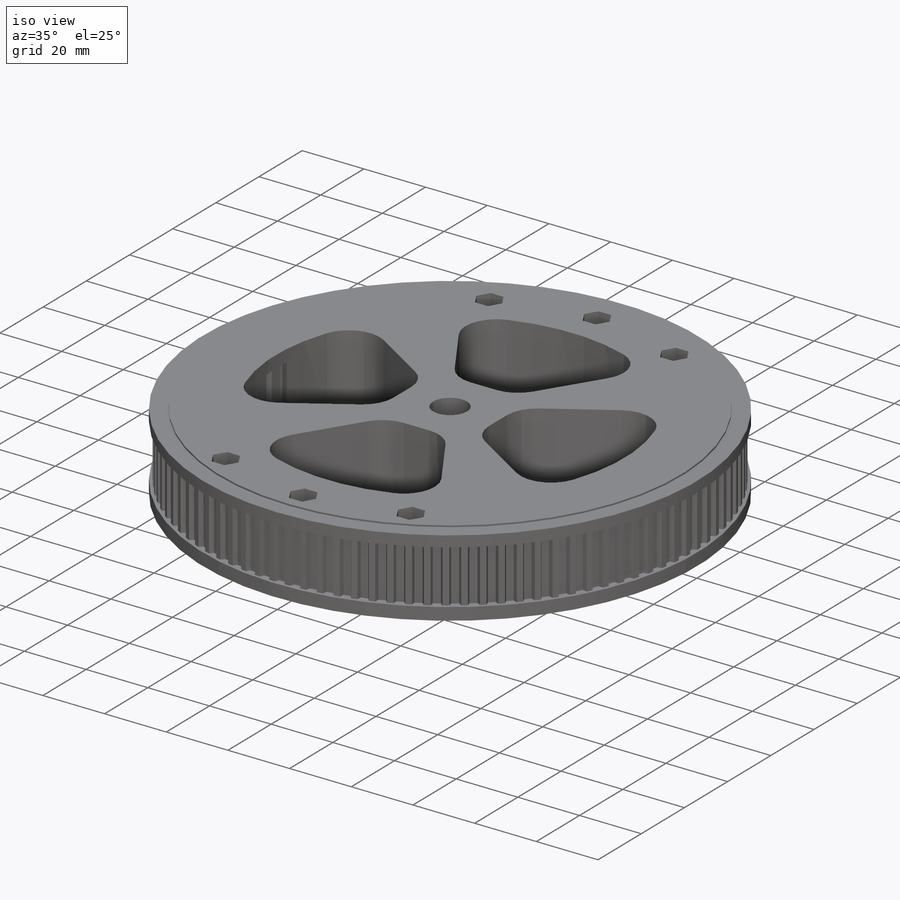
[diagram: iso view]
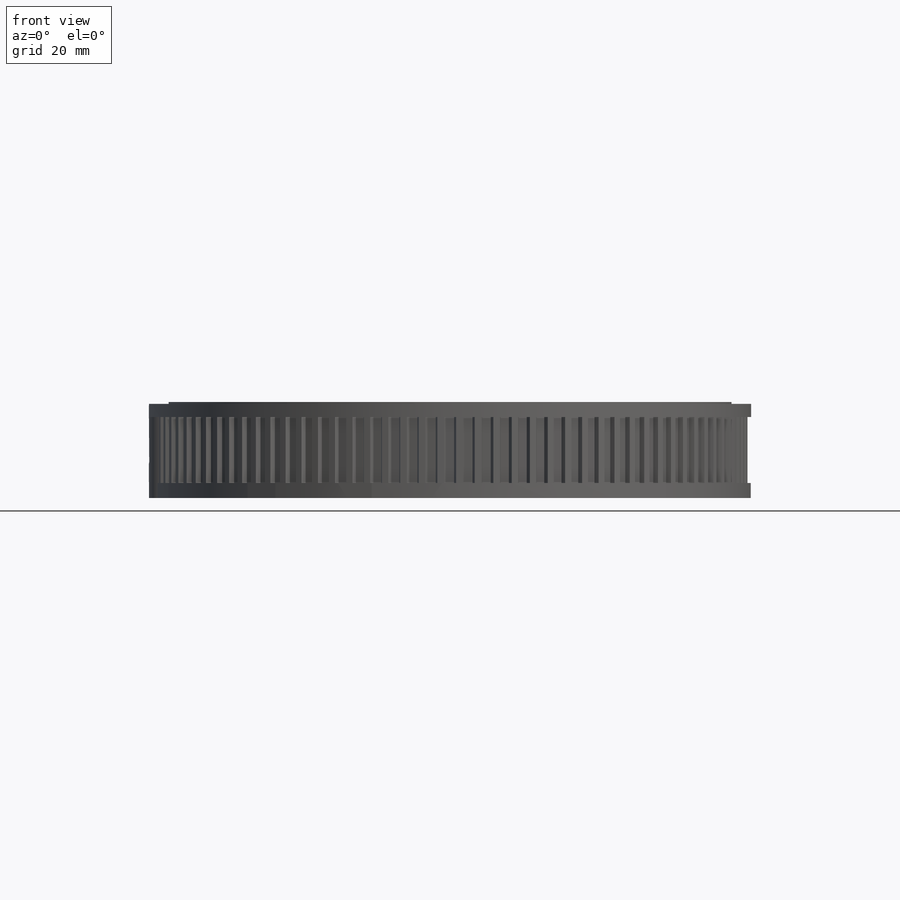
[diagram: front view]
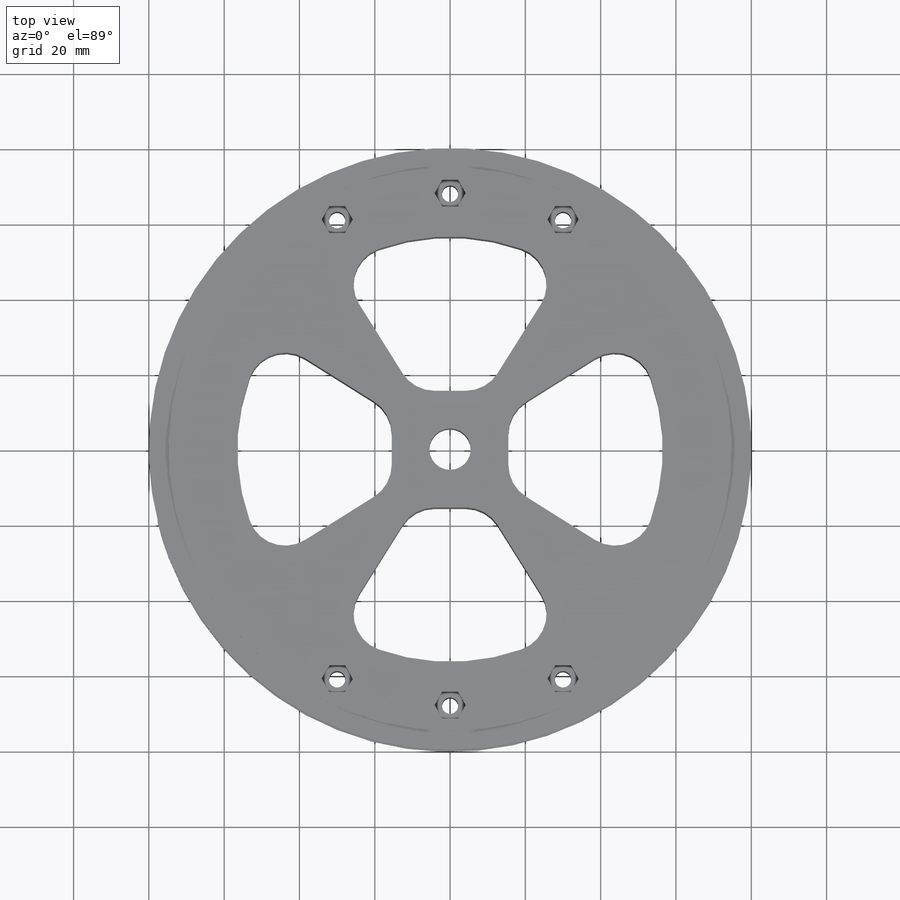
[diagram: top view]
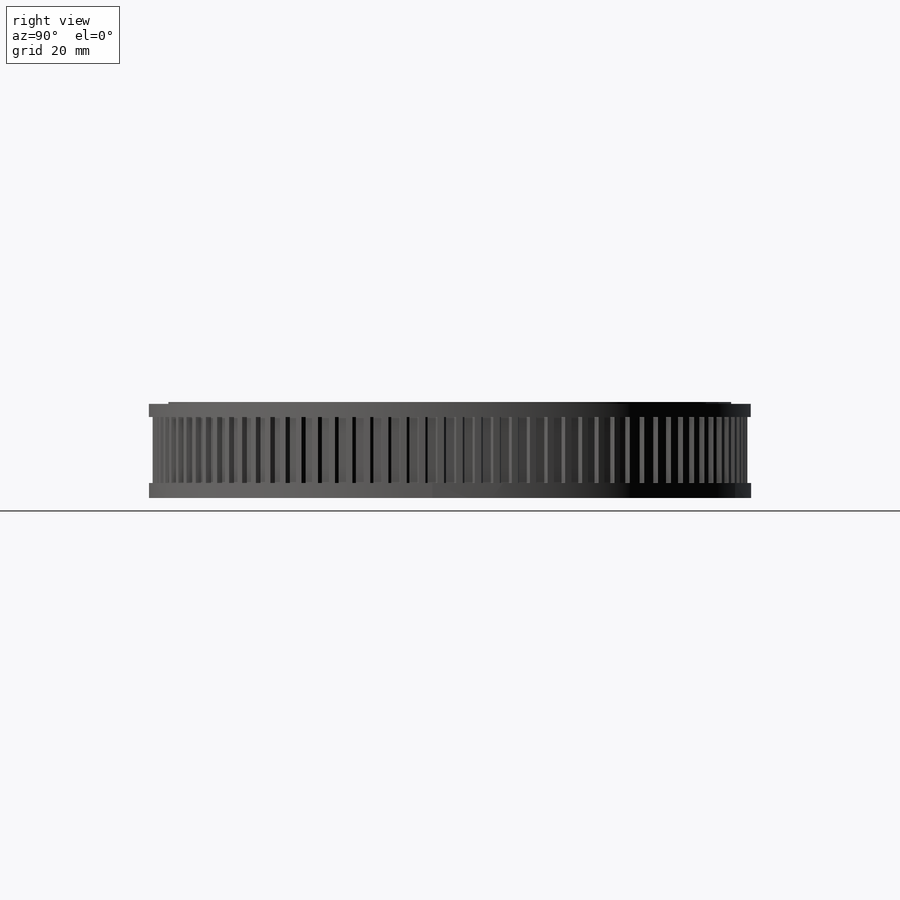
[diagram: right view]
SOLIDWORKS PART (.sldprt)
format: sldprt  version: not decoded by parser v0  size: 1,200,128 bytes
history: native  units: mm
features: sketch x13, cut_extrude x10, plane x4, extrude x3, fillet x2, material x1, pattern_circular x1 (+9 scaffold rows collapsed)
feature tree (43):
  scaffold x9  (default folders/planes/origin — collapsed)
  material  "Material <sin especificar>"
  plane  "Alzado"
  plane  "Planta"
  plane  "Vista lateral"
  sketch  "Croquis1"  dims[D3=7.4mm D8=4.3mm D1=160.0mm D2=160.0mm D4=12.0mm D5=19.0mm D6=21.76mm D7=60.0mm]
  extrude  "Saliente-Extruir3"  Depth=21.5mm
  sketch  "Croquis3"  dims[c1.D1=157.6mm c1.D2=~90.858826mm c1.D6=160.1mm c2.D1=158.0mm c2.D2=1.3mm c2.D3=2.15mm c2.D4=0.5mm c2.D5=0.5mm c2.D7=1.75mm]
  cut_extrude  "Cortar-Extruir2"  Depth=17.5mm
  pattern_circular  "MatrizC1"  Count=100 Angle=360deg
  sketch  "Croquis4"  dims[D1=160.0mm]
  extrude  "Saliente-Extruir4"  Depth=4mm
  sketch  "Croquis6"  dims[D1=13.1mm]
  cut_extrude  "Cortar-Extruir4"  Depth=5.4mm
  sketch  "Croquis7"  dims[D1=11.0mm]
  cut_extrude  "Cortar-Extruir5"  Depth=35.5mm
  sketch  "Croquis8"  dims[D1=4.3mm]
  cut_extrude  "Cortar-Extruir6"  Depth=40mm
  sketch  "Croquis9"  dims[D1=7.2mm]
  cut_extrude  "Cortar-Extruir7"  Depth=10mm
  sketch  "Croquis10"  dims[D1=160.0mm D2=5.2mm]
  cut_extrude  "Cortar-Extruir8"  Depth=0.5mm
  sketch  "Croquis11"  dims[D1=113.0mm D2=10.0mm D3=30.0mm D4=30.0mm D5=30.0mm D6=30.0mm D7=113.0mm]
  cut_extrude  "Cortar-Extruir9"  Depth=40.5mm
  sketch  "Croquis12"  dims[c1.D2=9.6mm c1.D1=~33.586551mm c1.D3=2.65mm c1.D4=2.1mm c2.D2=2.1mm c2.D4=1.3mm c2.D5=1.5mm c2.D6=1.35mm c2.D1=80.0mm c3.D1=0.0deg c3.D2=80.0mm c4.D2=135.0deg c5.D2=30.0mm c5.D3=11.0mm c5.D4=2.65mm c5.D5=1.3mm c5.D6=2.0mm c5.D7=0.5mm c5.D8=2.1mm c5.D9=0.5mm c5.D10=1.75mm c5.D11=0.5mm c5.D12=0.5mm c5.D13=0.5mm c5.D14=1.05mm c5.D15=1.0mm]
  cut_extrude  "Cortar-Extruir12"  [1 undecoded]
  sketch  "Croquis16"  dims[D1=160.0mm]
  extrude  "Saliente-Extruir5"  [1 undecoded]
  sketch  "Croquis17"  dims[D1=160.0mm D2=8.0mm D3=6.0mm]
  cut_extrude  "Cortar-Extruir16"  [1 undecoded]
  fillet  "Redondeo1"  Radius=75mm
  fillet  "Redondeo2"  Radius=5mm
  plane  "Plano1"
  sketch  "Croquis18"  dims[c1.D4=15.0mm c1.D1=15.0mm c1.D2=1.0mm c2.D1=15.0mm c2.D3=~14.484228mm c3.D3=30.0deg]
  cut_extrude  "Cortar-Extruir17"  Depth=2mm
decode coverage: 26 of 29 modeling features carry decoded parameters
note: ~ marks probable driven/reference dimensions
note: 3 parameter values undecoded
summary: no parameter record found for 3 features
note: suppression state not decoded; provenance and decode notes live in map.json
